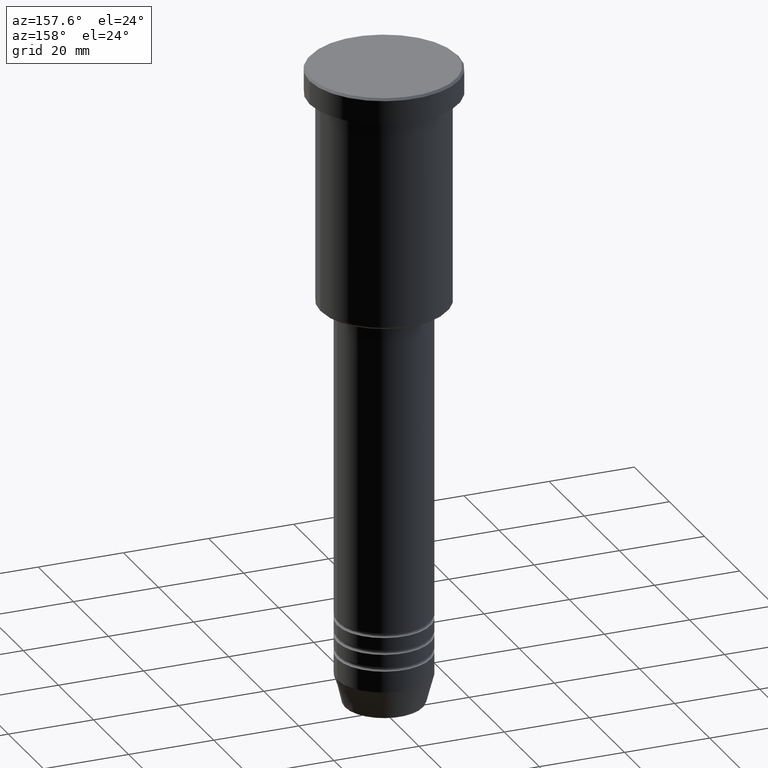
[diagram: clean part render]
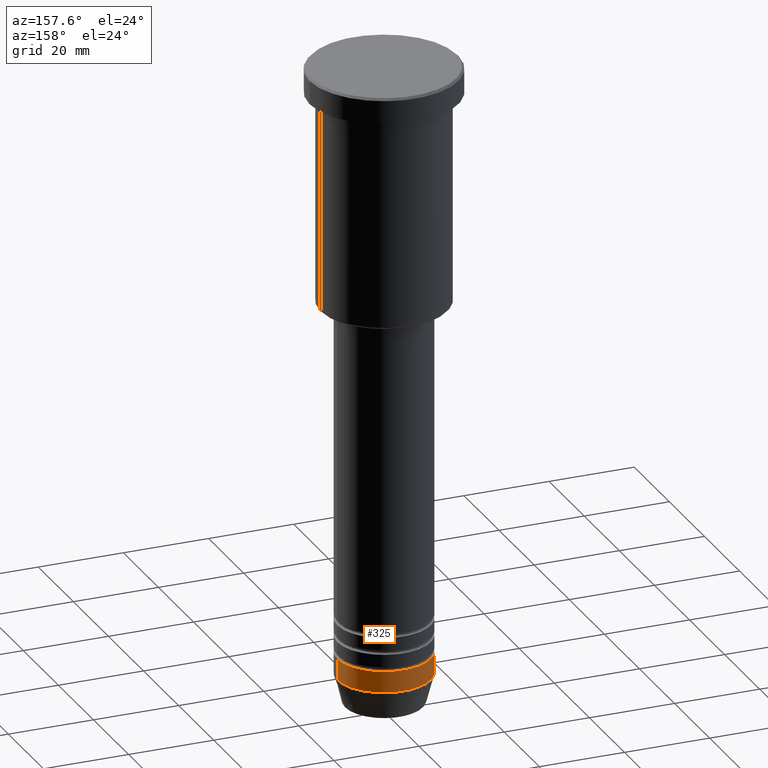
[diagram: same view with one face highlighted and labeled with its STEP entity id]
A machine part, auxiliary view. The second image highlights one B-rep face of the part: STEP entity #325.
In plain terms, the highlighted cylindrical surface (partial cylindrical patch) has radius 11 mm, axis along (-0, -0, 1).
Its self-contained STEP definition (entity closure, byte-faithful):
#55 = VERTEX_POINT ( 'NONE', #292 ) ;
#67 = ORIENTED_EDGE ( 'NONE', *, *, #751, .F. ) ;
#69 = DIRECTION ( 'NONE',  ( 1.000000000000000000, 0.000000000000000000, 0.000000000000000000 ) ) ;
#81 = VECTOR ( 'NONE', #488, 1000.000000000000000 ) ;
#122 = CARTESIAN_POINT ( 'NONE',  ( -11.00000000000000000, 1.347111479062088405E-15, 0.000000000000000000 ) ) ;
#129 = CARTESIAN_POINT ( 'NONE',  ( 11.00000000000000000, 0.000000000000000000, 0.000000000000000000 ) ) ;
#134 = VERTEX_POINT ( 'NONE', #1009 ) ;
#138 = DIRECTION ( 'NONE',  ( 1.000000000000000000, 0.000000000000000000, 0.000000000000000000 ) ) ;
#181 = DIRECTION ( 'NONE',  ( -0.000000000000000000, -0.000000000000000000, 1.000000000000000000 ) ) ;
#182 = AXIS2_PLACEMENT_3D ( 'NONE', #840, #406, #491 ) ;
#268 = CARTESIAN_POINT ( 'NONE',  ( -11.00000000000000000, 1.347111479062088405E-15, -144.0000000000000284 ) ) ;
#292 = CARTESIAN_POINT ( 'NONE',  ( -11.00000000000000000, 1.347111479062088405E-15, -139.0000000000000000 ) ) ;
#317 = AXIS2_PLACEMENT_3D ( 'NONE', #821, #181, #69 ) ;
#325 = ADVANCED_FACE ( 'NONE', ( #436 ), #785, .T. ) ;
#328 = DIRECTION ( 'NONE',  ( -0.000000000000000000, -0.000000000000000000, 1.000000000000000000 ) ) ;
#375 = CARTESIAN_POINT ( 'NONE',  ( 0.000000000000000000, 0.000000000000000000, -139.0000000000000000 ) ) ;
#406 = DIRECTION ( 'NONE',  ( -0.000000000000000000, -0.000000000000000000, 1.000000000000000000 ) ) ;
#422 = ORIENTED_EDGE ( 'NONE', *, *, #475, .T. ) ;
#436 = FACE_OUTER_BOUND ( 'NONE', #797, .T. ) ;
#442 = AXIS2_PLACEMENT_3D ( 'NONE', #375, #533, #138 ) ;
#475 = EDGE_CURVE ( 'NONE', #877, #55, #579, .T. ) ;
#486 = EDGE_CURVE ( 'NONE', #1037, #877, #549, .T. ) ;
#488 = DIRECTION ( 'NONE',  ( -0.000000000000000000, -0.000000000000000000, 1.000000000000000000 ) ) ;
#491 = DIRECTION ( 'NONE',  ( 1.000000000000000000, 0.000000000000000000, 0.000000000000000000 ) ) ;
#533 = DIRECTION ( 'NONE',  ( -0.000000000000000000, -0.000000000000000000, 1.000000000000000000 ) ) ;
#549 = CIRCLE ( 'NONE', #182, 11.00000000000000000 ) ;
#561 = ORIENTED_EDGE ( 'NONE', *, *, #563, .F. ) ;
#563 = EDGE_CURVE ( 'NONE', #1037, #134, #615, .T. ) ;
#579 = LINE ( 'NONE', #122, #81 ) ;
#615 = LINE ( 'NONE', #129, #747 ) ;
#616 = ORIENTED_EDGE ( 'NONE', *, *, #486, .T. ) ;
#747 = VECTOR ( 'NONE', #328, 1000.000000000000000 ) ;
#751 = EDGE_CURVE ( 'NONE', #134, #55, #975, .T. ) ;
#785 = CYLINDRICAL_SURFACE ( 'NONE', #317, 11.00000000000000000 ) ;
#797 = EDGE_LOOP ( 'NONE', ( #616, #422, #67, #561 ) ) ;
#821 = CARTESIAN_POINT ( 'NONE',  ( 0.000000000000000000, 0.000000000000000000, 0.000000000000000000 ) ) ;
#840 = CARTESIAN_POINT ( 'NONE',  ( 0.000000000000000000, 0.000000000000000000, -144.0000000000000284 ) ) ;
#877 = VERTEX_POINT ( 'NONE', #268 ) ;
#975 = CIRCLE ( 'NONE', #442, 11.00000000000000000 ) ;
#1009 = CARTESIAN_POINT ( 'NONE',  ( 11.00000000000000000, 0.000000000000000000, -139.0000000000000000 ) ) ;
#1037 = VERTEX_POINT ( 'NONE', #1038 ) ;
#1038 = CARTESIAN_POINT ( 'NONE',  ( 11.00000000000000000, 0.000000000000000000, -144.0000000000000284 ) ) ;